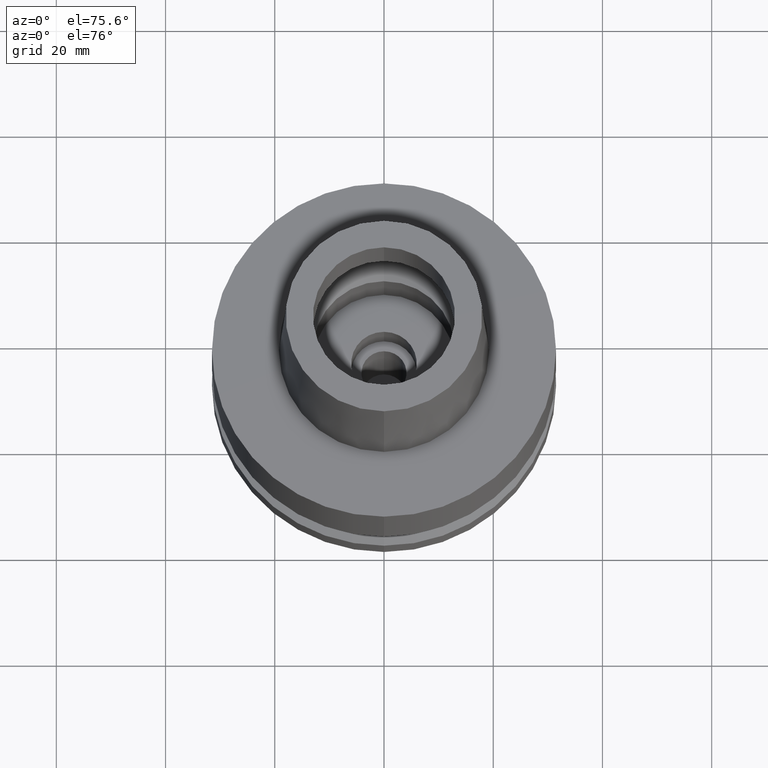
[diagram: clean part render]
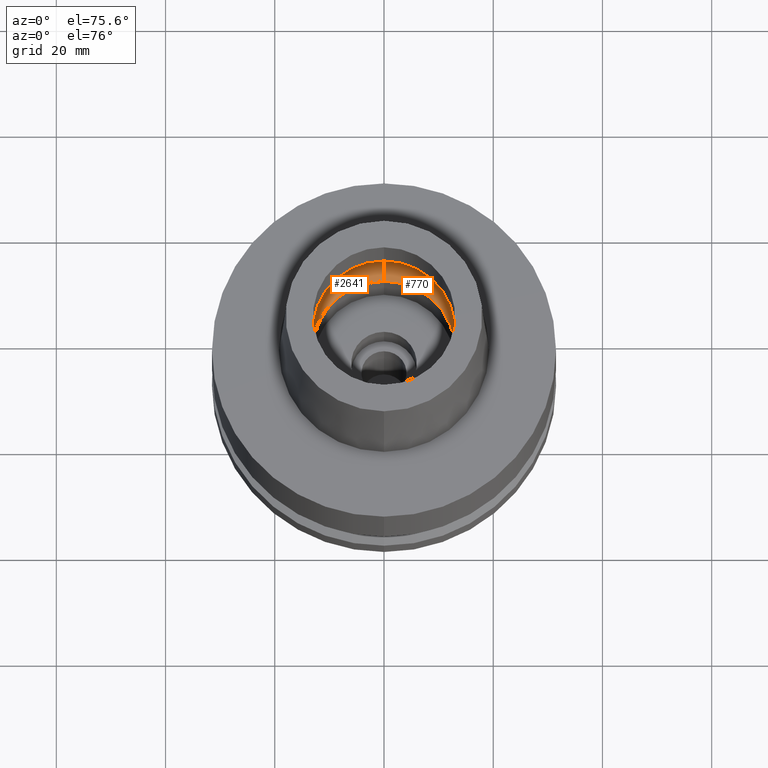
[diagram: same view with one multi-face feature highlighted, each face labeled with its STEP entity id]
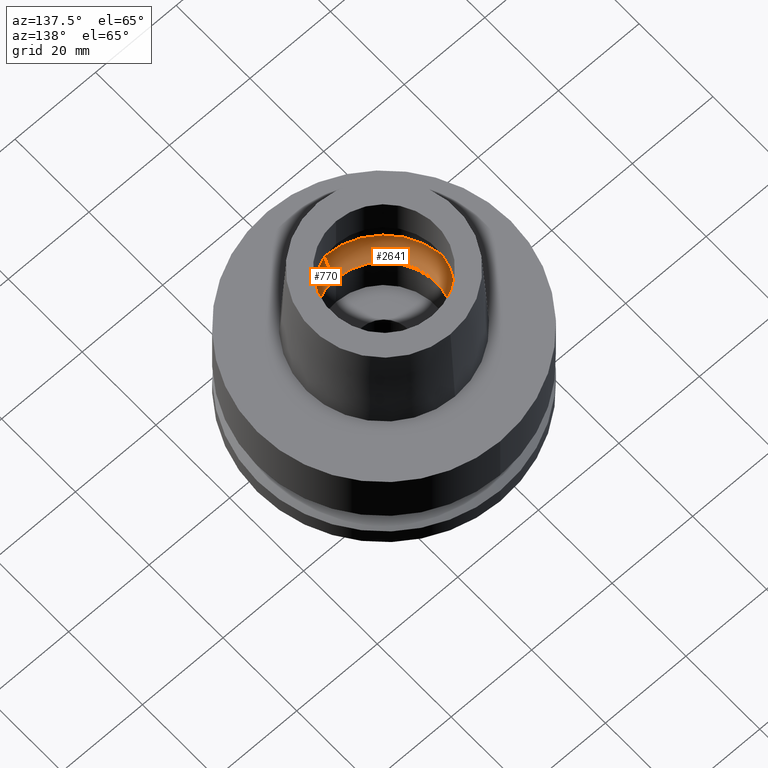
[diagram: same view with one multi-face feature highlighted, each face labeled with its STEP entity id]
A machine part, auxiliary view. The highlighted faces form ONE feature: a constant-radius fillet chain: 2 tangent blend faces with common blend radius 6 mm. The faces share edges in the B-rep.
A second angle (auxiliary view) of the same feature is appended — it is thin or edge-on in the first view.
Their STEP definitions:
[1] entity #2641 (Torus):
#65 = DIRECTION ( 'NONE',  ( 0.0000000000000000000, -1.000000000000000000, 0.0000000000000000000 ) ) ;
#230 = CARTESIAN_POINT ( 'NONE',  ( 0.0000000000000000000, 16.00000000000000000, 5.245999999999999552 ) ) ;
#510 = TOROIDAL_SURFACE ( 'NONE', #1210, 10.00000000000000000, 6.000000000000000000 ) ;
#514 = CARTESIAN_POINT ( 'NONE',  ( 0.0000000000000000000, 1.288891770231000090E-14, 5.245999999999999552 ) ) ;
#533 = CARTESIAN_POINT ( 'NONE',  ( 0.0000000000000000000, 13.00000000000000000, 0.04984757729336999899 ) ) ;
#544 = DIRECTION ( 'NONE',  ( 1.000000000000000000, 0.0000000000000000000, 0.0000000000000000000 ) ) ;
#556 = AXIS2_PLACEMENT_3D ( 'NONE', #1968, #1090, #902 ) ;
#597 = EDGE_LOOP ( 'NONE', ( #2420, #1414, #2599, #1836 ) ) ;
#809 = VERTEX_POINT ( 'NONE', #533 ) ;
#815 = VERTEX_POINT ( 'NONE', #1173 ) ;
#876 = EDGE_CURVE ( 'NONE', #2205, #815, #2193, .T. ) ;
#902 = DIRECTION ( 'NONE',  ( 0.0000000000000000000, 1.000000000000000000, 0.0000000000000000000 ) ) ;
#1015 = AXIS2_PLACEMENT_3D ( 'NONE', #2033, #1621, #2188 ) ;
#1074 = CIRCLE ( 'NONE', #1691, 16.00000000000000000 ) ;
#1090 = DIRECTION ( 'NONE',  ( 0.0000000000000000000, 0.0000000000000000000, 1.000000000000000000 ) ) ;
#1099 = FACE_OUTER_BOUND ( 'NONE', #597, .T. ) ;
#1111 = DIRECTION ( 'NONE',  ( 0.0000000000000000000, -1.000000000000000000, 0.0000000000000000000 ) ) ;
#1173 = CARTESIAN_POINT ( 'NONE',  ( 0.0000000000000000000, -16.00000000000000000, 5.245999999999999552 ) ) ;
#1210 = AXIS2_PLACEMENT_3D ( 'NONE', #2165, #2329, #65 ) ;
#1387 = CIRCLE ( 'NONE', #556, 13.00000000000000000 ) ;
#1388 = CIRCLE ( 'NONE', #1562, 6.000000000000000000 ) ;
#1414 = ORIENTED_EDGE ( 'NONE', *, *, #876, .F. ) ;
#1500 = VERTEX_POINT ( 'NONE', #230 ) ;
#1562 = AXIS2_PLACEMENT_3D ( 'NONE', #2054, #544, #1600 ) ;
#1600 = DIRECTION ( 'NONE',  ( 0.0000000000000000000, 0.5000000000000169864, -0.8660254037844289376 ) ) ;
#1621 = DIRECTION ( 'NONE',  ( -1.000000000000000000, 0.0000000000000000000, 0.0000000000000000000 ) ) ;
#1691 = AXIS2_PLACEMENT_3D ( 'NONE', #514, #1723, #1111 ) ;
#1723 = DIRECTION ( 'NONE',  ( 0.0000000000000000000, 0.0000000000000000000, -1.000000000000000000 ) ) ;
#1836 = ORIENTED_EDGE ( 'NONE', *, *, #2271, .T. ) ;
#1903 = EDGE_CURVE ( 'NONE', #809, #2205, #1387, .T. ) ;
#1968 = CARTESIAN_POINT ( 'NONE',  ( 0.0000000000000000000, 1.288891770231000090E-14, 0.04984757729336999899 ) ) ;
#2003 = EDGE_CURVE ( 'NONE', #815, #1500, #1074, .T. ) ;
#2015 = CARTESIAN_POINT ( 'NONE',  ( 0.0000000000000000000, -13.00000000000000000, 0.04984757729336999899 ) ) ;
#2033 = CARTESIAN_POINT ( 'NONE',  ( 0.0000000000000000000, -10.00000000000000000, 5.245999999999999552 ) ) ;
#2054 = CARTESIAN_POINT ( 'NONE',  ( 0.0000000000000000000, 10.00000000000000000, 5.245999999999999552 ) ) ;
#2165 = CARTESIAN_POINT ( 'NONE',  ( 0.0000000000000000000, 1.288891770231000090E-14, 5.245999999999999552 ) ) ;
#2188 = DIRECTION ( 'NONE',  ( 0.0000000000000000000, -0.5000000000000169864, -0.8660254037844289376 ) ) ;
#2193 = CIRCLE ( 'NONE', #1015, 6.000000000000000000 ) ;
#2205 = VERTEX_POINT ( 'NONE', #2015 ) ;
#2271 = EDGE_CURVE ( 'NONE', #809, #1500, #1388, .T. ) ;
#2329 = DIRECTION ( 'NONE',  ( 0.0000000000000000000, 0.0000000000000000000, -1.000000000000000000 ) ) ;
#2420 = ORIENTED_EDGE ( 'NONE', *, *, #2003, .F. ) ;
#2599 = ORIENTED_EDGE ( 'NONE', *, *, #1903, .F. ) ;
#2641 = ADVANCED_FACE ( 'NONE', ( #1099 ), #510, .F. ) ;
[2] entity #770 (Torus):
#36 = ORIENTED_EDGE ( 'NONE', *, *, #2271, .F. ) ;
#96 = EDGE_LOOP ( 'NONE', ( #358, #2644, #127, #36 ) ) ;
#127 = ORIENTED_EDGE ( 'NONE', *, *, #1931, .F. ) ;
#171 = AXIS2_PLACEMENT_3D ( 'NONE', #1317, #1734, #2345 ) ;
#230 = CARTESIAN_POINT ( 'NONE',  ( 0.0000000000000000000, 16.00000000000000000, 5.245999999999999552 ) ) ;
#252 = DIRECTION ( 'NONE',  ( 0.0000000000000000000, -1.000000000000000000, 0.0000000000000000000 ) ) ;
#265 = TOROIDAL_SURFACE ( 'NONE', #2545, 10.00000000000000000, 6.000000000000000000 ) ;
#358 = ORIENTED_EDGE ( 'NONE', *, *, #935, .F. ) ;
#499 = FACE_OUTER_BOUND ( 'NONE', #96, .T. ) ;
#533 = CARTESIAN_POINT ( 'NONE',  ( 0.0000000000000000000, 13.00000000000000000, 0.04984757729336999899 ) ) ;
#544 = DIRECTION ( 'NONE',  ( 1.000000000000000000, 0.0000000000000000000, 0.0000000000000000000 ) ) ;
#596 = CIRCLE ( 'NONE', #171, 16.00000000000000000 ) ;
#770 = ADVANCED_FACE ( 'NONE', ( #499 ), #265, .F. ) ;
#809 = VERTEX_POINT ( 'NONE', #533 ) ;
#815 = VERTEX_POINT ( 'NONE', #1173 ) ;
#876 = EDGE_CURVE ( 'NONE', #2205, #815, #2193, .T. ) ;
#935 = EDGE_CURVE ( 'NONE', #2205, #809, #2463, .T. ) ;
#1015 = AXIS2_PLACEMENT_3D ( 'NONE', #2033, #1621, #2188 ) ;
#1173 = CARTESIAN_POINT ( 'NONE',  ( 0.0000000000000000000, -16.00000000000000000, 5.245999999999999552 ) ) ;
#1317 = CARTESIAN_POINT ( 'NONE',  ( 0.0000000000000000000, 1.288891770231000090E-14, 5.245999999999999552 ) ) ;
#1319 = DIRECTION ( 'NONE',  ( 0.0000000000000000000, 0.0000000000000000000, -1.000000000000000000 ) ) ;
#1321 = DIRECTION ( 'NONE',  ( 0.0000000000000000000, 0.0000000000000000000, 1.000000000000000000 ) ) ;
#1388 = CIRCLE ( 'NONE', #1562, 6.000000000000000000 ) ;
#1500 = VERTEX_POINT ( 'NONE', #230 ) ;
#1562 = AXIS2_PLACEMENT_3D ( 'NONE', #2054, #544, #1600 ) ;
#1600 = DIRECTION ( 'NONE',  ( 0.0000000000000000000, 0.5000000000000169864, -0.8660254037844289376 ) ) ;
#1621 = DIRECTION ( 'NONE',  ( -1.000000000000000000, 0.0000000000000000000, 0.0000000000000000000 ) ) ;
#1734 = DIRECTION ( 'NONE',  ( 0.0000000000000000000, 0.0000000000000000000, -1.000000000000000000 ) ) ;
#1740 = DIRECTION ( 'NONE',  ( 0.0000000000000000000, -1.000000000000000000, 0.0000000000000000000 ) ) ;
#1770 = CARTESIAN_POINT ( 'NONE',  ( 0.0000000000000000000, 1.288891770231000090E-14, 5.245999999999999552 ) ) ;
#1931 = EDGE_CURVE ( 'NONE', #1500, #815, #596, .T. ) ;
#2015 = CARTESIAN_POINT ( 'NONE',  ( 0.0000000000000000000, -13.00000000000000000, 0.04984757729336999899 ) ) ;
#2033 = CARTESIAN_POINT ( 'NONE',  ( 0.0000000000000000000, -10.00000000000000000, 5.245999999999999552 ) ) ;
#2054 = CARTESIAN_POINT ( 'NONE',  ( 0.0000000000000000000, 10.00000000000000000, 5.245999999999999552 ) ) ;
#2105 = CARTESIAN_POINT ( 'NONE',  ( 0.0000000000000000000, 1.288891770231000090E-14, 0.04984757729336999899 ) ) ;
#2188 = DIRECTION ( 'NONE',  ( 0.0000000000000000000, -0.5000000000000169864, -0.8660254037844289376 ) ) ;
#2193 = CIRCLE ( 'NONE', #1015, 6.000000000000000000 ) ;
#2205 = VERTEX_POINT ( 'NONE', #2015 ) ;
#2271 = EDGE_CURVE ( 'NONE', #809, #1500, #1388, .T. ) ;
#2321 = AXIS2_PLACEMENT_3D ( 'NONE', #2105, #1321, #1740 ) ;
#2345 = DIRECTION ( 'NONE',  ( 0.0000000000000000000, 1.000000000000000000, 0.0000000000000000000 ) ) ;
#2463 = CIRCLE ( 'NONE', #2321, 13.00000000000000000 ) ;
#2545 = AXIS2_PLACEMENT_3D ( 'NONE', #1770, #1319, #252 ) ;
#2644 = ORIENTED_EDGE ( 'NONE', *, *, #876, .T. ) ;